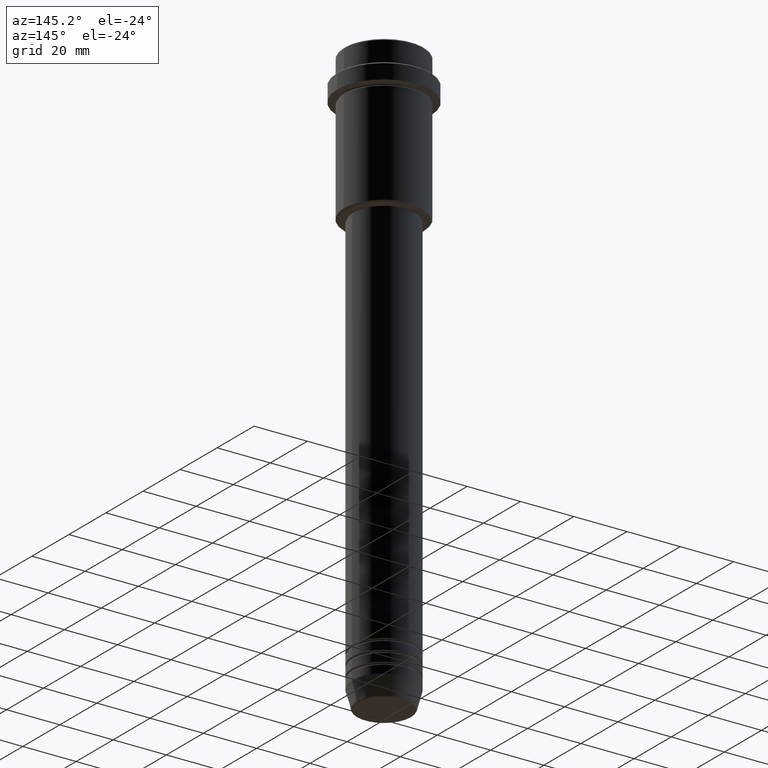
[diagram: clean part render]
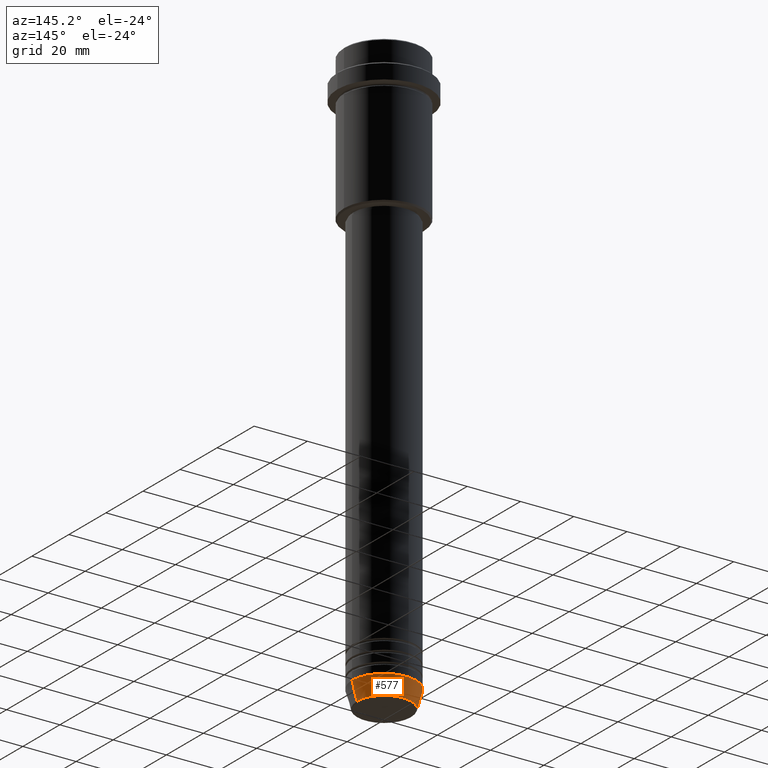
[diagram: same view with one face highlighted and labeled with its STEP entity id]
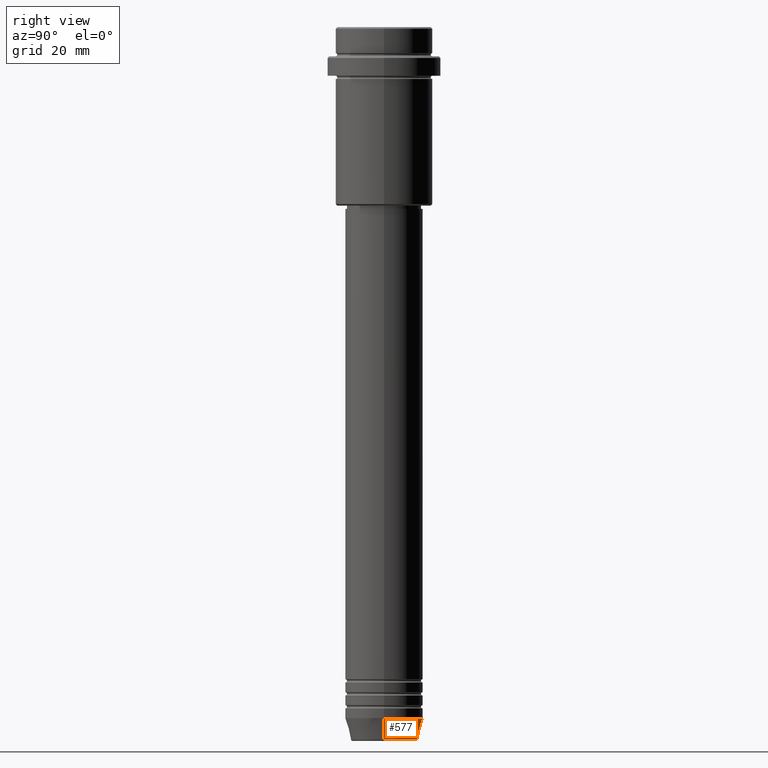
[diagram: same view with one face highlighted and labeled with its STEP entity id]
A machine part, auxiliary view. The second image highlights one B-rep face of the part: STEP entity #577.
A second angle (right view) of the same face is appended — the face is thin or edge-on in the first view.
In plain terms, the highlighted conical surface has half-angle 15 deg.
Its self-contained STEP definition (entity closure, byte-faithful):
#6 = EDGE_CURVE ( 'NONE', #410, #479, #1226, .T. ) ;
#33 = DIRECTION ( 'NONE',  ( -0.000000000000000000, -0.000000000000000000, 1.000000000000000000 ) ) ;
#63 = ORIENTED_EDGE ( 'NONE', *, *, #1330, .T. ) ;
#77 = AXIS2_PLACEMENT_3D ( 'NONE', #696, #33, #474 ) ;
#119 = EDGE_CURVE ( 'NONE', #404, #1329, #956, .T. ) ;
#178 = DIRECTION ( 'NONE',  ( 1.000000000000000000, 0.000000000000000000, 0.000000000000000000 ) ) ;
#222 = AXIS2_PLACEMENT_3D ( 'NONE', #836, #1140, #178 ) ;
#258 = LINE ( 'NONE', #1118, #804 ) ;
#311 = FACE_OUTER_BOUND ( 'NONE', #811, .T. ) ;
#347 = CONICAL_SURFACE ( 'NONE', #458, 12.00000000000000000, 0.2617993877991500740 ) ;
#360 = ORIENTED_EDGE ( 'NONE', *, *, #119, .F. ) ;
#404 = VERTEX_POINT ( 'NONE', #514 ) ;
#410 = VERTEX_POINT ( 'NONE', #1383 ) ;
#446 = ORIENTED_EDGE ( 'NONE', *, *, #772, .F. ) ;
#458 = AXIS2_PLACEMENT_3D ( 'NONE', #1154, #503, #853 ) ;
#474 = DIRECTION ( 'NONE',  ( 1.000000000000000000, 0.000000000000000000, 0.000000000000000000 ) ) ;
#479 = VERTEX_POINT ( 'NONE', #968 ) ;
#503 = DIRECTION ( 'NONE',  ( -0.000000000000000000, -0.000000000000000000, 1.000000000000000000 ) ) ;
#514 = CARTESIAN_POINT ( 'NONE',  ( 12.00000000000000000, 0.000000000000000000, -213.0000000000000284 ) ) ;
#577 = ADVANCED_FACE ( 'NONE', ( #311 ), #347, .T. ) ;
#665 = VECTOR ( 'NONE', #999, 1000.000000000000000 ) ;
#696 = CARTESIAN_POINT ( 'NONE',  ( 0.000000000000000000, 0.000000000000000000, -219.6294095225512706 ) ) ;
#772 = EDGE_CURVE ( 'NONE', #410, #404, #861, .T. ) ;
#788 = DIRECTION ( 'NONE',  ( -0.2588190451025213501, 3.169619151431772337E-17, 0.9659258262890680902 ) ) ;
#804 = VECTOR ( 'NONE', #788, 1000.000000000000000 ) ;
#811 = EDGE_LOOP ( 'NONE', ( #1082, #63, #360, #446 ) ) ;
#836 = CARTESIAN_POINT ( 'NONE',  ( 0.000000000000000000, 0.000000000000000000, -213.0000000000000284 ) ) ;
#853 = DIRECTION ( 'NONE',  ( 1.000000000000000000, 0.000000000000000000, 0.000000000000000000 ) ) ;
#861 = LINE ( 'NONE', #1299, #665 ) ;
#956 = CIRCLE ( 'NONE', #222, 12.00000000000000000 ) ;
#968 = CARTESIAN_POINT ( 'NONE',  ( -10.22365507213719127, 1.360806402472382744E-15, -219.6294095225512706 ) ) ;
#999 = DIRECTION ( 'NONE',  ( 0.2588190451025213501, 0.000000000000000000, 0.9659258262890680902 ) ) ;
#1082 = ORIENTED_EDGE ( 'NONE', *, *, #6, .T. ) ;
#1118 = CARTESIAN_POINT ( 'NONE',  ( -12.00000000000000000, 1.469576158976823947E-15, -213.0000000000000284 ) ) ;
#1140 = DIRECTION ( 'NONE',  ( -0.000000000000000000, -0.000000000000000000, 1.000000000000000000 ) ) ;
#1154 = CARTESIAN_POINT ( 'NONE',  ( 0.000000000000000000, 0.000000000000000000, -213.0000000000000284 ) ) ;
#1225 = CARTESIAN_POINT ( 'NONE',  ( -12.00000000000000000, 1.469576158976823947E-15, -213.0000000000000284 ) ) ;
#1226 = CIRCLE ( 'NONE', #77, 10.22365507213719127 ) ;
#1299 = CARTESIAN_POINT ( 'NONE',  ( 12.00000000000000000, 0.000000000000000000, -213.0000000000000284 ) ) ;
#1329 = VERTEX_POINT ( 'NONE', #1225 ) ;
#1330 = EDGE_CURVE ( 'NONE', #479, #1329, #258, .T. ) ;
#1383 = CARTESIAN_POINT ( 'NONE',  ( 10.22365507213719127, 0.000000000000000000, -219.6294095225512706 ) ) ;